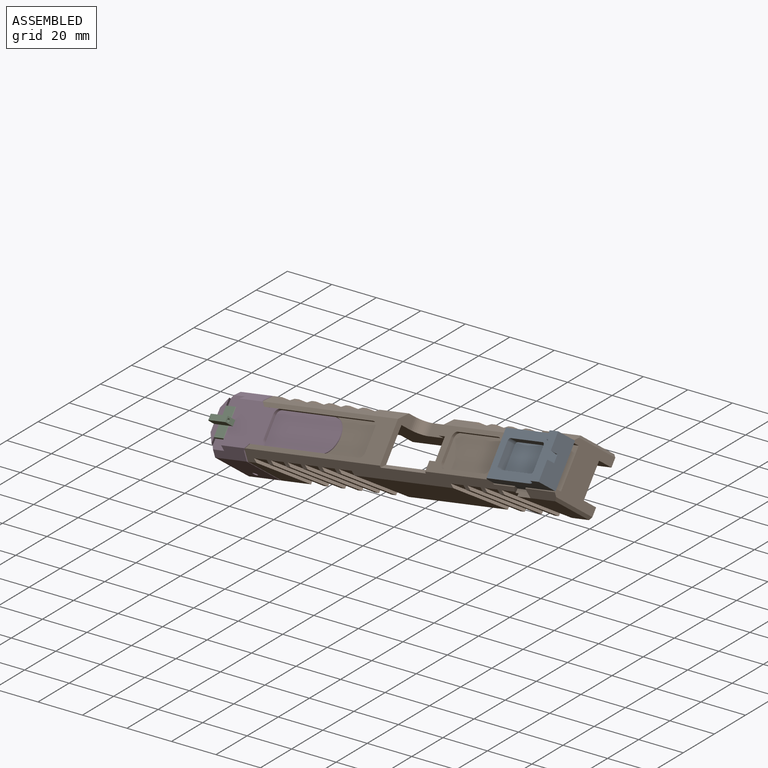
[diagram: assembled view]
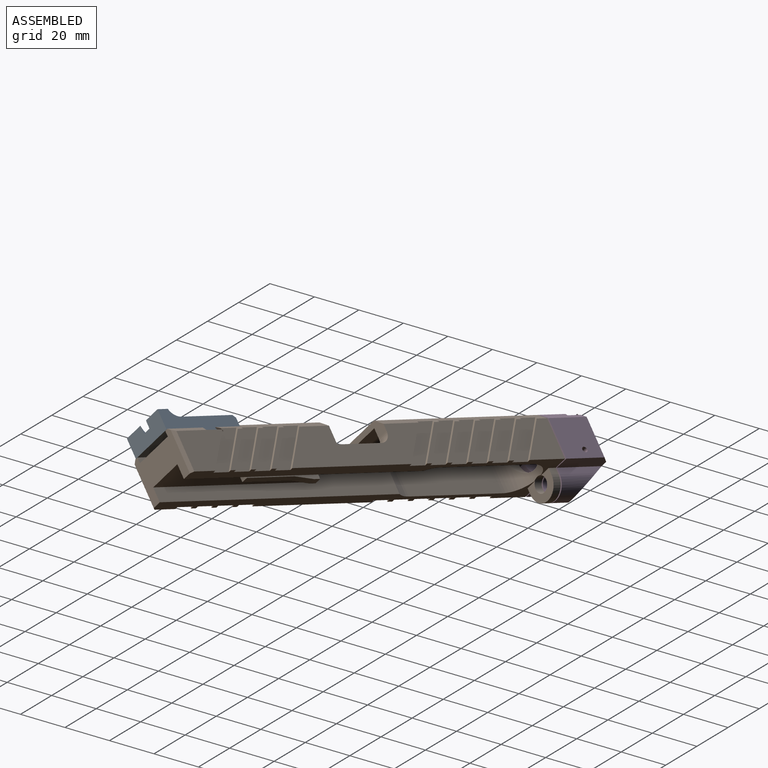
[diagram: assembled view, second angle]
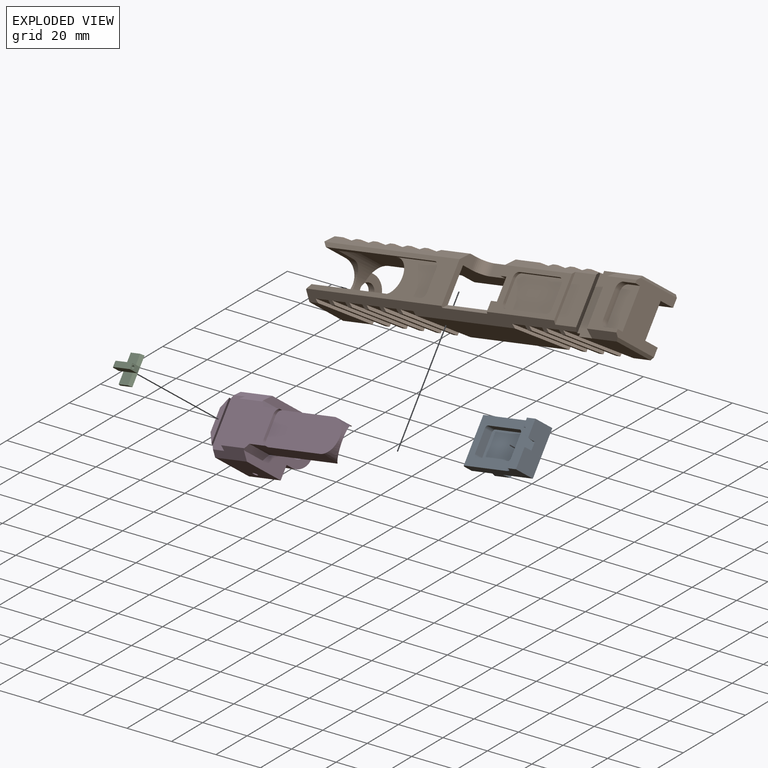
[diagram: exploded view]
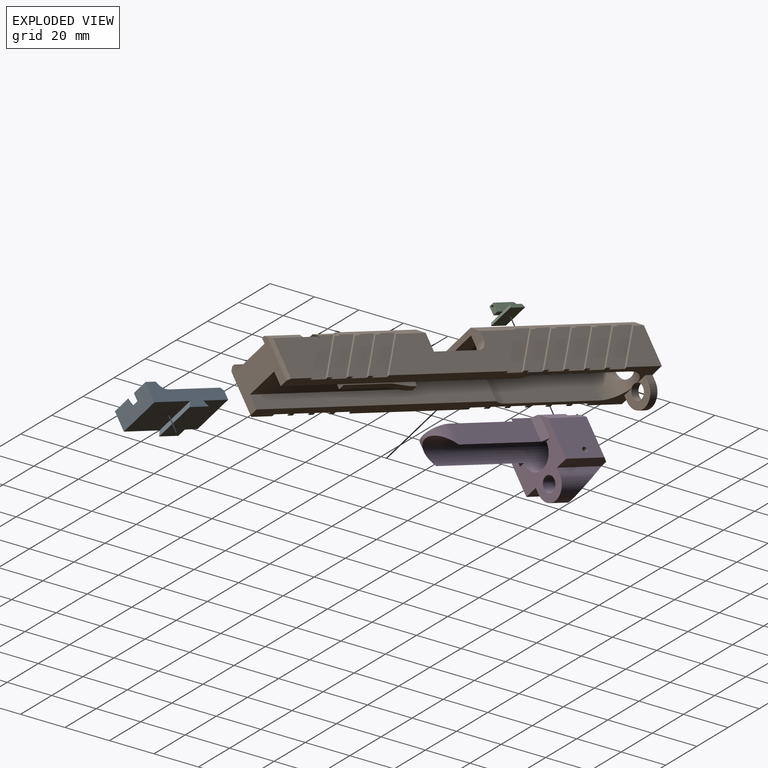
[diagram: exploded view, second angle]
ASSEMBLY  parts=4 mates=5
PART A: 28 faces, bbox 37x20.7x12.6 mm
  f0: plane 8.01x5.46mm, normal (0,0,1), area 26.1mm2, adj f1,f10,f15,f18
  f1: plane 20.33x8.85mm, normal (-1,0,0), area 166.9mm2, adj f0,f2,f8,f9,f10,f11,f12,f13
  f2: plane 20.32x17.68mm, normal (0,0,-1), area 359.2mm2, adj f1,f3,f10,f11
  f3: plane 20.32x2.59mm, normal (-0.87,0,0.5), area 60.8mm2, adj f2,f4,f10,f11
  f4: plane 20.32x9.53mm, normal (0,0,-1), area 193.5mm2, adj f3,f5,f10,f11
  f5: plane 20.32x2.59mm, normal (0.87,0,0.5), area 60.8mm2, adj f4,f6,f10,f11
  f6: plane 20.32x12.29mm, normal (0,0,-1), area 249.7mm2, adj f5,f7,f10,f11
  f7: plane 20.32x4.01mm, normal (1,0,0), area 81.5mm2, adj f6,f10,f11,f16
  f8: plane 35.23x20.32mm, normal (0,0,1), area 333.3mm2, adj f1,f10,f11,f12,f13,f14,f15,f16
  f9: plane 9.28x5.46mm, normal (0,0,1), area 32.5mm2, adj f1,f11,f14,f17
  f10: plane 36.5x11.43mm, normal (0,-1,0), area 235.5mm2, adj f0,f1,f2,f3,f4,f5,f6,f7
  f11: plane 36.5x11.43mm, normal (0,1,0), area 235.5mm2, adj f1,f2,f3,f4,f5,f6,f7,f8
  f12: plane 2.91x1.13mm, normal (0,-1,0), area 1.4mm2, adj f1,f8,f17
  f13: plane 2.91x1.13mm, normal (0,1,0), area 1.4mm2, adj f1,f8,f18
  f14: cylinder r=5.08mm len=4.85mm, axis (0,-1,0), area 25.3mm2, adj f8,f9,f11,f17
  f15: cylinder r=5.08mm len=4.85mm, axis (0,-1,0), area 17.2mm2, adj f0,f8,f10,f18
  f16: plane 20.32x1.27mm, normal (0.71,0,0.71), area 36.5mm2, adj f7,f8,f10,f11
  f17: cone r=10.16mm half-angle=45deg, axis (0,-1,0), area 29.2mm2, adj f1,f8,f9,f12,f14
  f18: cone r=10.16mm half-angle=45deg, axis (0,1,0), area 29.2mm2, adj f0,f1,f8,f13,f15
  f19: plane 10.16x3.81mm, normal (1,0,0), area 38.7mm2, adj f8,f23,f24,f27
  f20: plane 18.95x3.81mm, normal (0,1,0), area 72.2mm2, adj f8,f23,f24,f25
  f21: plane 10.16x3.81mm, normal (-1,0,0), area 38.7mm2, adj f8,f23,f25,f26
  f22: plane 18.95x3.81mm, normal (0,-1,0), area 72.2mm2, adj f8,f23,f26,f27
  f23: plane 21.49x12.7mm, normal (0,0,1), area 271.6mm2, adj f19,f20,f21,f22,f24,f25,f26,f27
  f24: cylinder r=1.27mm len=3.81mm, axis (0,0,-1), area 7.6mm2, adj f8,f19,f20,f23
  f25: cylinder r=1.27mm len=3.81mm, axis (0,0,1), area 7.6mm2, adj f8,f20,f21,f23
  f26: cylinder r=1.27mm len=3.81mm, axis (0,0,-1), area 7.6mm2, adj f8,f21,f22,f23
  f27: cylinder r=1.27mm len=3.81mm, axis (0,0,1), area 7.6mm2, adj f8,f19,f22,f23
PART B: 158 faces, bbox 26.4x184.9x31.3 mm
  f0: plane 118.75x19mm, normal (1,0,0), area 1043.7mm2, adj f27,f30,f54,f55,f60,f61,f65,f154
  f1: plane 52.72x3.81mm, normal (-0.71,0,0.71), area 207.2mm2, adj f2,f20,f21,f22,f23,f29,f55,f70
  f2: plane 40.21x18.8mm, normal (0,0,1), area 293.3mm2, adj f1,f31,f35,f37,f38,f52,f55,f71
  f3: plane 17.68x14.92mm, normal (1,0,0), area 44.9mm2, adj f31,f36,f125,f128
  f4: plane 17.68x14.92mm, normal (1,0,0), area 44.9mm2, adj f31,f36,f124,f133
  f5: plane 17.68x14.92mm, normal (1,0,0), area 44.9mm2, adj f31,f36,f127,f146
  f6: plane 17.68x14.92mm, normal (1,0,0), area 44.9mm2, adj f31,f36,f130,f134
  f7: plane 17.68x14.92mm, normal (1,0,0), area 44.9mm2, adj f31,f36,f131,f148
  f8: plane 17.68x14.92mm, normal (1,0,0), area 44.9mm2, adj f31,f36,f136,f140
  f9: plane 17.68x14.92mm, normal (1,0,0), area 44.9mm2, adj f31,f36,f137,f142
  f10: plane 17.68x14.92mm, normal (1,0,0), area 44.9mm2, adj f31,f36,f139,f152
  f11: plane 71.5x17.68mm, normal (1,0,0), area 1045.2mm2, adj f31,f36,f143,f145
  f12: plane 17.68x17.59mm, normal (1,0,0), area 201.5mm2, adj f31,f36,f42,f149
  f13: plane 22.72x17.68mm, normal (1,0,0), area 292.4mm2, adj f28,f32,f36,f69,f150,f156
  f14: plane 80.74x18.8mm, normal (0,0,1), area 481.9mm2, adj f26,f31,f47,f48,f49,f51,f54,f115
  f15: plane 17.68x14.92mm, normal (-1,0,0), area 44.9mm2, adj f26,f27,f105,f107
  f16: plane 17.68x14.92mm, normal (-1,0,0), area 44.9mm2, adj f26,f27,f98,f108
  f17: plane 17.68x14.92mm, normal (-1,0,0), area 44.9mm2, adj f26,f27,f87,f104
  f18: plane 17.68x14.92mm, normal (-1,0,0), area 44.9mm2, adj f26,f27,f99,f101
  f19: plane 17.68x14.92mm, normal (-1,0,0), area 44.9mm2, adj f26,f27,f83,f102
  f20: plane 17.68x14.92mm, normal (-1,0,0), area 44.9mm2, adj f1,f27,f93,f95
  f21: plane 17.68x14.92mm, normal (-1,0,0), area 44.9mm2, adj f1,f27,f89,f96
  f22: plane 17.68x14.92mm, normal (-1,0,0), area 44.9mm2, adj f1,f27,f81,f92
  f23: plane 71.5x17.68mm, normal (-1,0,0), area 829.9mm2, adj f1,f26,f27,f54,f55,f86,f90,f154
  f24: plane 17.68x17.59mm, normal (-1,0,0), area 201.5mm2, adj f26,f27,f42,f84
  f25: plane 22.72x17.68mm, normal (-1,0,0), area 292.4mm2, adj f27,f28,f33,f69,f79,f157
  f26: plane 81.07x3.81mm, normal (-0.71,0,0.71), area 354.7mm2, adj f14,f15,f16,f17,f18,f19,f23,f24
  f27: plane 184.86x11.18mm, normal (0,0,-1), area 768.1mm2, adj f0,f15,f16,f17,f18,f19,f20,f21
  f28: plane 26.42x9.53mm, normal (0,0,1), area 247.5mm2, adj f13,f25,f29,f69,f79,f82,f150,f153
  f29: plane 23.95x2.67mm, normal (0,0.87,-0.5), area 71.4mm2, adj f1,f28,f31,f70,f80,f82,f151,f153
  f30: plane 23.88x20.32mm, normal (0,1,0), area 332.9mm2, adj f0,f27,f32,f33,f36,f53,f65,f72
  f31: plane 160.8x3.81mm, normal (0.71,0,0.71), area 686.5mm2, adj f2,f3,f4,f5,f6,f7,f8,f9
  f32: plane 17.62x2.64mm, normal (0.71,0,0.71), area 61.8mm2, adj f13,f30,f69,f72,f156
  f33: plane 17.62x2.64mm, normal (-0.71,0,0.71), area 61.8mm2, adj f25,f30,f69,f72,f157
  f34: plane 3x3mm, normal (0,1,0), area 9mm2, adj f63,f64,f65,f68
  f35: plane 19.51x10.01mm, normal (0,-1,0), area 163.7mm2, adj f2,f37,f38,f63,f64,f65,f66
  f36: plane 184.86x11.18mm, normal (0,0,-1), area 768.1mm2, adj f3,f4,f5,f6,f7,f8,f9,f10
  f37: plane 15.01x3.51mm, normal (1,0,0), area 52.6mm2, adj f2,f35,f55,f65
  f38: plane 15.01x3.51mm, normal (-1,0,0), area 52.6mm2, adj f2,f35,f52,f65
  f39: cylinder r=7.44mm len=14.88mm, axis (0,0,1), area 28.5mm2, adj f47,f48,f61,f116
  f40: cylinder r=7.44mm len=14.88mm, axis (0,1,0), area 65.3mm2, adj f47,f48,f50,f58
  f41: cylinder r=3.44mm len=6.88mm, axis (0,1,0), area 76.1mm2, adj f27,f36,f42,f46,f58
  f42: plane 30.94x26.42mm, normal (0,-1,0), area 281.1mm2, adj f12,f24,f26,f27,f31,f36,f41,f43
  f43: plane 3.51x2.78mm, normal (-1,0,0), area 9.7mm2, adj f27,f42,f44,f46
  f44: cylinder r=7mm len=14mm, axis (0,1,0), area 77.1mm2, adj f42,f43,f45,f46
  f45: plane 3.51x2.78mm, normal (1,0,0), area 9.7mm2, adj f36,f42,f44,f46
  f46: plane 14x9.78mm, normal (0,1,0), area 80.5mm2, adj f27,f36,f41,f43,f44,f45
  f47: plane 65.02x10.39mm, normal (1,0,0), area 168.5mm2, adj f14,f39,f40,f49,f58,f61,f116,f118
  f48: plane 65.02x10.39mm, normal (-1,0,0), area 168.5mm2, adj f14,f39,f40,f51,f58,f61,f116,f117
  f49: plane 10.39x2.29mm, normal (0.71,-0.71,0), area 33.5mm2, adj f14,f26,f42,f47,f50
  f50: cone r=7.44mm half-angle=45deg, axis (0,-1,0), area 87.2mm2, adj f40,f42,f49,f51
  f51: plane 10.39x2.29mm, normal (-0.71,-0.71,0), area 33.5mm2, adj f14,f31,f42,f48,f50
  f52: plane 15.01x4.94mm, normal (0,-1,0), area 47.8mm2, adj f2,f31,f38,f53,f62,f65
  f53: plane 118.75x19mm, normal (-1,0,0), area 1294.7mm2, adj f30,f36,f52,f56,f61,f62,f65
  f54: plane 23.15x6.91mm, normal (0,1,0), area 71.3mm2, adj f0,f14,f23,f26,f31,f61,f62,f155
  f55: plane 15.01x8.2mm, normal (0,-1,0), area 100.2mm2, adj f0,f1,f2,f23,f37,f65,f154
  f56: cylinder r=10.01mm len=19mm, axis (0,0,-1), area 122.5mm2, adj f36,f53,f57,f61
  f57: plane 46.58x19mm, normal (-1,0,0), area 885.1mm2, adj f36,f56,f58,f61
  f58: cylinder r=10.01mm len=20.02mm, axis (0,0,-1), area 368.1mm2, adj f27,f36,f40,f41,f47,f48,f57,f59
  f59: plane 46.58x19mm, normal (1,0,0), area 885.1mm2, adj f27,f58,f60,f61
  f60: cylinder r=10.01mm len=19mm, axis (0,0,-1), area 122.5mm2, adj f0,f27,f59,f61
  f61: plane 74.25x20.02mm, normal (0,0,-1), area 776.8mm2, adj f0,f39,f47,f48,f53,f54,f56,f57
  f62: plane 27x1.94mm, normal (-0.71,0,0.71), area 74.2mm2, adj f31,f52,f53,f54
  f63: plane 35.51x4.5mm, normal (1,0,0), area 117.7mm2, adj f34,f35,f65,f66,f67,f68
  f64: plane 35.51x4.5mm, normal (-1,0,0), area 117.7mm2, adj f34,f35,f65,f66,f67,f68
  f65: plane 76.79x16mm, normal (0,0,-1), area 1087.2mm2, adj f0,f30,f34,f35,f37,f38,f52,f53
  f66: plane 3x3mm, normal (0,0,-1), area 9mm2, adj f35,f63,f64,f67
  f67: plane 8.99x3mm, normal (0,0.16,-0.99), area 27.3mm2, adj f63,f64,f66,f68
  f68: plane 23.52x3mm, normal (0,0,-1), area 70.5mm2, adj f34,f63,f64,f67
  f69: plane 26.42x2.67mm, normal (0,-0.87,-0.5), area 73.3mm2, adj f13,f25,f28,f32,f33,f72
  f70: plane 21.13x12.51mm, normal (0,0,1), area 264.4mm2, adj f1,f29,f31,f71
  f71: plane 21.13x1.17mm, normal (0,1,0), area 23.3mm2, adj f1,f2,f31,f70
  f72: plane 21.13x17.62mm, normal (0,0,1), area 184.9mm2, adj f30,f32,f33,f69,f73,f74,f75,f77
  f73: plane 7.24x2.54mm, normal (1,0,0), area 18.4mm2, adj f30,f72,f76,f77
  f74: plane 12.07x2.54mm, normal (0,1,0), area 30.6mm2, adj f72,f76,f77,f78
  f75: plane 7.24x2.54mm, normal (-1,0,0), area 18.4mm2, adj f30,f72,f76,f78
  f76: plane 18.42x10.41mm, normal (0,0,1), area 187.4mm2, adj f30,f73,f74,f75,f77,f78
  f77: cylinder r=3.17mm len=3.18mm, axis (0,0,-1), area 12.7mm2, adj f72,f73,f74,f76
  f78: cylinder r=3.17mm len=3.18mm, axis (0,0,1), area 12.7mm2, adj f72,f74,f75,f76
  f79: plane 17.65x12.36mm, normal (0,-0.82,-0.57), area 27.4mm2, adj f25,f27,f28,f82
  f80: plane 0.03x0.03mm, normal (0,-0.82,-0.57), area 0mm2, adj f1,f29,f82
  f81: plane 18.95x13.27mm, normal (0,0.82,0.57), area 28.4mm2, adj f1,f22,f27,f82
  f82: plane 20.89x18.95mm, normal (-1,0,0), area 143.4mm2, adj f1,f27,f28,f29,f79,f80,f81
  f83: plane 18.95x13.27mm, normal (0,-0.82,-0.57), area 28.4mm2, adj f19,f26,f27,f85
  f84: plane 18.95x13.27mm, normal (0,0.82,0.57), area 28.4mm2, adj f24,f26,f27,f85
  f85: plane 20.89x18.95mm, normal (-1,0,0), area 144.4mm2, adj f26,f27,f83,f84
  f86: plane 18.95x13.27mm, normal (0,-0.82,-0.57), area 28.4mm2, adj f23,f26,f27,f88
  f87: plane 18.95x13.27mm, normal (0,0.82,0.57), area 28.4mm2, adj f17,f26,f27,f88
  f88: plane 20.89x18.95mm, normal (-1,0,0), area 144.4mm2, adj f26,f27,f86,f87
  f89: plane 18.95x13.27mm, normal (0,-0.82,-0.57), area 28.4mm2, adj f1,f21,f27,f91
  f90: plane 18.95x13.27mm, normal (0,0.82,0.57), area 28.4mm2, adj f1,f23,f27,f91
  f91: plane 20.89x18.95mm, normal (-1,0,0), area 144.4mm2, adj f1,f27,f89,f90
  f92: plane 18.95x13.27mm, normal (0,-0.82,-0.57), area 28.4mm2, adj f1,f22,f27,f94
  f93: plane 18.95x13.27mm, normal (0,0.82,0.57), area 28.4mm2, adj f1,f20,f27,f94
  f94: plane 20.89x18.95mm, normal (-1,0,0), area 144.4mm2, adj f1,f27,f92,f93
  f95: plane 18.95x13.27mm, normal (0,-0.82,-0.57), area 28.4mm2, adj f1,f20,f27,f97
  f96: plane 18.95x13.27mm, normal (0,0.82,0.57), area 28.4mm2, adj f1,f21,f27,f97
  f97: plane 20.89x18.95mm, normal (-1,0,0), area 144.4mm2, adj f1,f27,f95,f96
  f98: plane 18.95x13.27mm, normal (0,-0.82,-0.57), area 28.4mm2, adj f16,f26,f27,f100
  f99: plane 18.95x13.27mm, normal (0,0.82,0.57), area 28.4mm2, adj f18,f26,f27,f100
  f100: plane 20.89x18.95mm, normal (-1,0,0), area 144.4mm2, adj f26,f27,f98,f99
  f101: plane 18.95x13.27mm, normal (0,-0.82,-0.57), area 28.4mm2, adj f18,f26,f27,f103
  f102: plane 18.95x13.27mm, normal (0,0.82,0.57), area 28.4mm2, adj f19,f26,f27,f103
  f103: plane 20.89x18.95mm, normal (-1,0,0), area 144.4mm2, adj f26,f27,f101,f102
  f104: plane 18.95x13.27mm, normal (0,-0.82,-0.57), area 28.4mm2, adj f17,f26,f27,f106
  f105: plane 18.95x13.27mm, normal (0,0.82,0.57), area 28.4mm2, adj f15,f26,f27,f106
  f106: plane 20.89x18.95mm, normal (-1,0,0), area 144.4mm2, adj f26,f27,f104,f105
  f107: plane 18.95x13.27mm, normal (0,-0.82,-0.57), area 28.4mm2, adj f15,f26,f27,f109
  f108: plane 18.95x13.27mm, normal (0,0.82,0.57), area 28.4mm2, adj f16,f26,f27,f109
  f109: plane 20.89x18.95mm, normal (-1,0,0), area 144.4mm2, adj f26,f27,f107,f108
  f110: plane 9.8x1.27mm, normal (0,-1,0), area 12.5mm2, adj f2,f114,f119,f122
  f111: plane 24.01x1.27mm, normal (1,0,0), area 30.5mm2, adj f2,f114,f119,f120
  f112: plane 9.8x1.27mm, normal (0,1,0), area 12.5mm2, adj f2,f114,f120,f121
  f113: plane 24.01x1.27mm, normal (-1,0,0), area 30.5mm2, adj f2,f114,f121,f122
  f114: plane 29.09x14.88mm, normal (0,0,1), area 427.4mm2, adj f110,f111,f112,f113,f119,f120,f121,f122
  f115: plane 9.8x1.27mm, normal (0,-1,0), area 12.5mm2, adj f14,f116,f117,f118
  f116: plane 26.49x14.88mm, normal (0,0,1), area 304.6mm2, adj f39,f47,f48,f115,f117,f118
  f117: cylinder r=2.54mm len=2.54mm, axis (0,0,1), area 5.1mm2, adj f14,f48,f115,f116
  f118: cylinder r=2.54mm len=2.54mm, axis (0,0,-1), area 5.1mm2, adj f14,f47,f115,f116
  f119: cylinder r=2.54mm len=2.54mm, axis (0,0,1), area 5.1mm2, adj f2,f110,f111,f114
  f120: cylinder r=2.54mm len=2.54mm, axis (0,0,-1), area 5.1mm2, adj f2,f111,f112,f114
  f121: cylinder r=2.54mm len=2.54mm, axis (0,0,1), area 5.1mm2, adj f2,f112,f113,f114
  f122: cylinder r=2.54mm len=2.54mm, axis (0,0,-1), area 5.1mm2, adj f2,f110,f113,f114
  f123: plane 20.89x18.95mm, normal (1,0,0), area 144.4mm2, adj f31,f36,f124,f125
  f124: plane 18.95x13.27mm, normal (0,0.82,0.57), area 28.4mm2, adj f4,f31,f36,f123
  f125: plane 18.95x13.27mm, normal (0,-0.82,-0.57), area 28.4mm2, adj f3,f31,f36,f123
  f126: plane 20.89x18.95mm, normal (1,0,0), area 144.4mm2, adj f31,f36,f127,f128
  f127: plane 18.95x13.27mm, normal (0,-0.82,-0.57), area 28.4mm2, adj f5,f31,f36,f126
  f128: plane 18.95x13.27mm, normal (0,0.82,0.57), area 28.4mm2, adj f3,f31,f36,f126
  f129: plane 20.89x18.95mm, normal (1,0,0), area 144.4mm2, adj f31,f36,f130,f131
  f130: plane 18.95x13.27mm, normal (0,-0.82,-0.57), area 28.4mm2, adj f6,f31,f36,f129
  f131: plane 18.95x13.27mm, normal (0,0.82,0.57), area 28.4mm2, adj f7,f31,f36,f129
  f132: plane 20.89x18.95mm, normal (1,0,0), area 144.4mm2, adj f31,f36,f133,f134
  f133: plane 18.95x13.27mm, normal (0,-0.82,-0.57), area 28.4mm2, adj f4,f31,f36,f132
  f134: plane 18.95x13.27mm, normal (0,0.82,0.57), area 28.4mm2, adj f6,f31,f36,f132
  f135: plane 20.89x18.95mm, normal (1,0,0), area 144.4mm2, adj f31,f36,f136,f137
  f136: plane 18.95x13.27mm, normal (0,-0.82,-0.57), area 28.4mm2, adj f8,f31,f36,f135
  f137: plane 18.95x13.27mm, normal (0,0.82,0.57), area 28.4mm2, adj f9,f31,f36,f135
  f138: plane 20.89x18.95mm, normal (1,0,0), area 144.4mm2, adj f31,f36,f139,f140
  f139: plane 18.95x13.27mm, normal (0,-0.82,-0.57), area 28.4mm2, adj f10,f31,f36,f138
  f140: plane 18.95x13.27mm, normal (0,0.82,0.57), area 28.4mm2, adj f8,f31,f36,f138
  f141: plane 20.89x18.95mm, normal (1,0,0), area 144.4mm2, adj f31,f36,f142,f143
  f142: plane 18.95x13.27mm, normal (0,-0.82,-0.57), area 28.4mm2, adj f9,f31,f36,f141
  f143: plane 18.95x13.27mm, normal (0,0.82,0.57), area 28.4mm2, adj f11,f31,f36,f141
  f144: plane 20.89x18.95mm, normal (1,0,0), area 144.4mm2, adj f31,f36,f145,f146
  f145: plane 18.95x13.27mm, normal (0,-0.82,-0.57), area 28.4mm2, adj f11,f31,f36,f144
  f146: plane 18.95x13.27mm, normal (0,0.82,0.57), area 28.4mm2, adj f5,f31,f36,f144
  f147: plane 20.89x18.95mm, normal (1,0,0), area 144.4mm2, adj f31,f36,f148,f149
  f148: plane 18.95x13.27mm, normal (0,-0.82,-0.57), area 28.4mm2, adj f7,f31,f36,f147
  f149: plane 18.95x13.27mm, normal (0,0.82,0.57), area 28.4mm2, adj f12,f31,f36,f147
  f150: plane 17.65x12.36mm, normal (0,-0.82,-0.57), area 27.4mm2, adj f13,f28,f36,f153
  f151: plane 0.03x0.03mm, normal (0,-0.82,-0.57), area 0mm2, adj f29,f31,f153
  f152: plane 18.95x13.27mm, normal (0,0.82,0.57), area 28.4mm2, adj f10,f31,f36,f153
  f153: plane 20.89x18.95mm, normal (1,0,0), area 143.4mm2, adj f28,f29,f31,f36,f150,f151,f152
  f154: plane 21.92x5.21mm, normal (0,0,1), area 114.1mm2, adj f0,f23,f55,f155
  f155: cylinder r=5.08mm len=5.21mm, axis (1,0,0), area 41.6mm2, adj f0,f23,f54,f154
  f156: plane 18.95x1.27mm, normal (0.71,0.71,0), area 32.9mm2, adj f13,f30,f32,f36
  f157: plane 18.95x1.27mm, normal (-0.71,0.71,0), area 32.9mm2, adj f25,f27,f30,f33
PART C: 16 faces, bbox 11.1x12.7x5.5 mm
  f0: plane 2.75x2.54mm, normal (0,0,-1), area 7mm2, adj f4,f7,f10,f13
  f1: plane 3.94x2.54mm, normal (1,0,0), area 8.7mm2, adj f2,f3,f10,f13,f15
  f2: plane 2.75x2.54mm, normal (0,0,-1), area 7mm2, adj f1,f6,f10,f13
  f3: plane 9.57x2.54mm, normal (0,0,1), area 24.3mm2, adj f1,f10,f13,f14
  f4: plane 12.7x1.52mm, normal (-0.87,0,0.5), area 22.3mm2, adj f0,f5,f8,f9,f11,f12
  f5: plane 12.7x7.37mm, normal (0,0,-1), area 93.5mm2, adj f4,f6,f8,f9
  f6: plane 12.7x1.52mm, normal (0.87,0,0.5), area 22.3mm2, adj f2,f5,f8,f9,f11,f12
  f7: plane 2.54x2.41mm, normal (-1,0,0), area 6.1mm2, adj f0,f10,f13,f14,f15
  f8: plane 7.37x1.52mm, normal (0,-1,0), area 9.9mm2, adj f4,f5,f6,f12
  f9: plane 7.37x1.52mm, normal (0,1,0), area 9.9mm2, adj f4,f5,f6,f11
  f10: plane 11.1x3.94mm, normal (0,1,0), area 43.2mm2, adj f0,f1,f2,f3,f7,f11,f14
  f11: plane 5.61x5.08mm, normal (0,0,1), area 28.5mm2, adj f4,f6,f9,f10
  f12: plane 5.61x5.08mm, normal (0,0,1), area 28.5mm2, adj f4,f6,f8,f13
  f13: plane 11.1x3.94mm, normal (0,-1,0), area 43.2mm2, adj f0,f1,f2,f3,f7,f12,f14
  f14: cylinder r=1.52mm len=2.54mm, axis (0,1,0), area 4.8mm2, adj f3,f7,f10,f13,f15
  f15: cylinder r=0.64mm len=11.1mm, axis (1,0,0), area 43.6mm2, adj f1,f7,f14
PART D: 35 faces, bbox 26.4x75.2x31.3 mm
  f0: plane 25.38x18.8mm, normal (0,0,1), area 400.7mm2, adj f1,f15,f18,f19,f21,f22,f23,f31
  f1: plane 40.82x10.39mm, normal (1,0,0), area 384.4mm2, adj f0,f13,f16,f19,f33,f34
  f2: plane 22.15x2.77mm, normal (-1,0,0), area 55.6mm2, adj f3,f8,f11,f20
  f3: cylinder r=7mm len=18.05mm, axis (0,-1,0), area 251.7mm2, adj f2,f4,f8,f20
  f4: plane 22.15x2.77mm, normal (1,0,0), area 55.6mm2, adj f3,f8,f12,f20
  f5: cylinder r=3.44mm len=22.15mm, axis (0,-1,0), area 387.4mm2, adj f6,f8,f20
  f6: plane 21.49x20.07mm, normal (0,-1,0), area 229mm2, adj f5,f9,f11,f12,f13,f20,f27,f28
  f7: plane 2.54x2.54mm, normal (0,0,-1), area 3.2mm2, adj f8,f13,f19
  f8: plane 30.67x26.42mm, normal (0,1,0), area 337.5mm2, adj f2,f3,f4,f5,f7,f10,f11,f12
  f9: plane 18.44x3.05mm, normal (0,0,1), area 43.1mm2, adj f6,f25,f27,f30
  f10: plane 18.97x17.68mm, normal (-1,0,0), area 331mm2, adj f8,f11,f21,f26,f29
  f11: plane 22.15x6.21mm, normal (0,0,-1), area 132.5mm2, adj f2,f6,f8,f10,f29
  f12: plane 22.15x6.21mm, normal (0,0,-1), area 132.5mm2, adj f4,f6,f8,f14,f28
  f13: cylinder r=7.44mm len=72.95mm, axis (0,-1,0), area 2142.2mm2, adj f1,f6,f7,f8,f15,f16,f17,f26
  f14: plane 18.97x17.68mm, normal (1,0,0), area 331mm2, adj f8,f12,f22,f26,f28
  f15: plane 40.82x10.39mm, normal (-1,0,0), area 384.4mm2, adj f0,f13,f16,f18,f31,f34
  f16: extruded ~14.88x9.12mm, area 102.4mm2, adj f1,f13,f15,f34
  f17: plane 2.54x2.54mm, normal (0,0,-1), area 3.2mm2, adj f8,f13,f18
  f18: plane 10.39x2.54mm, normal (-0.71,0.71,0), area 37.1mm2, adj f0,f8,f15,f17,f21
  f19: plane 10.39x2.54mm, normal (0.71,0.71,0), area 37.1mm2, adj f0,f1,f7,f8,f22
  f20: plane 14.47x14mm, normal (0,-0.56,-0.83), area 143.6mm2, adj f2,f3,f4,f5,f6
  f21: plane 19.56x3.81mm, normal (-0.71,0,0.71), area 89.2mm2, adj f0,f8,f10,f18,f23,f24,f30
  f22: plane 19.56x3.81mm, normal (0.71,0,0.71), area 89.2mm2, adj f0,f8,f14,f19,f23,f24,f27
  f23: plane 21.84x1.52mm, normal (0,-0.87,-0.5), area 35.8mm2, adj f0,f21,f22,f24
  f24: plane 21.84x7.62mm, normal (0,0,1), area 165mm2, adj f21,f22,f23,f25,f27,f30
  f25: plane 19x1.52mm, normal (0,0.87,-0.5), area 32.9mm2, adj f9,f24,f27,f30
  f26: cylinder r=1.19mm len=26.42mm, axis (-1,0,0), area 173.8mm2, adj f10,f13,f14
  f27: plane 8.3x5.13mm, normal (0.5,-0.71,0.5), area 26.6mm2, adj f6,f9,f22,f24,f25,f28
  f28: plane 17.68x3.18mm, normal (0.71,-0.71,0), area 76.4mm2, adj f6,f12,f14,f27
  f29: plane 17.68x3.18mm, normal (-0.71,-0.71,0), area 76.4mm2, adj f6,f10,f11,f30
  f30: plane 8.3x5.13mm, normal (-0.5,-0.71,0.5), area 26.6mm2, adj f6,f9,f21,f24,f25,f29
  f31: cylinder r=2.54mm len=2.54mm, axis (0,0,1), area 5.1mm2, adj f0,f15,f32,f34
  f32: plane 9.8x1.27mm, normal (0,1,0), area 12.5mm2, adj f0,f31,f33,f34
  f33: cylinder r=2.54mm len=2.54mm, axis (0,0,1), area 5.1mm2, adj f0,f1,f32,f34
  f34: plane 43.43x14.88mm, normal (0,0,1), area 586.7mm2, adj f1,f15,f16,f31,f32,f33
PLACE A rot(axis=(-0.17,-0.41,0.9),172.7deg) t=(-20.81,-51.37,18.25)mm
PLACE B rot(axis=(0.51,0.21,-0.84),108.1deg) t=(-84.82,-28.51,-4.19)mm
PLACE C rot(axis=(0.91,-0.39,-0.14),53.3deg) t=(-189.95,-2.9,-22.58)mm
PLACE D rot(axis=(0.51,0.21,-0.84),108.1deg) t=(-192.07,0.91,-34.04)mm
MATE planar C.f5 <-> D.f24  axis (0.36,0.71,-0.61) through (-193.44,-1.95,-23.55)mm
MATE planar D.f15 <-> B.f47  axis (-0.03,0.66,0.75) through (-168.59,-9.09,-14.5)mm
MATE planar A.f4 <-> B.f28  axis (0.36,0.71,-0.61) through (-20.52,-51.45,18.34)mm
MATE planar C.f4 <-> D.f25  axis (-0.99,-0.13,0.08) through (-193.12,-6.78,-27.76)mm
MATE planar B.f14 <-> D.f0  axis (-0.36,-0.71,0.61) through (-125.09,-25.86,-8.06)mm
